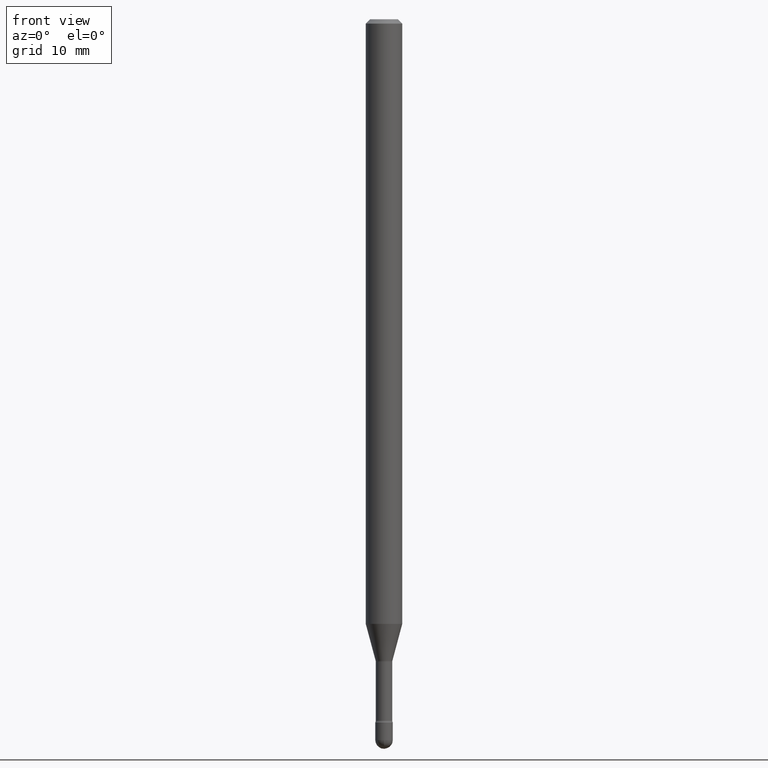
[diagram: clean part render]
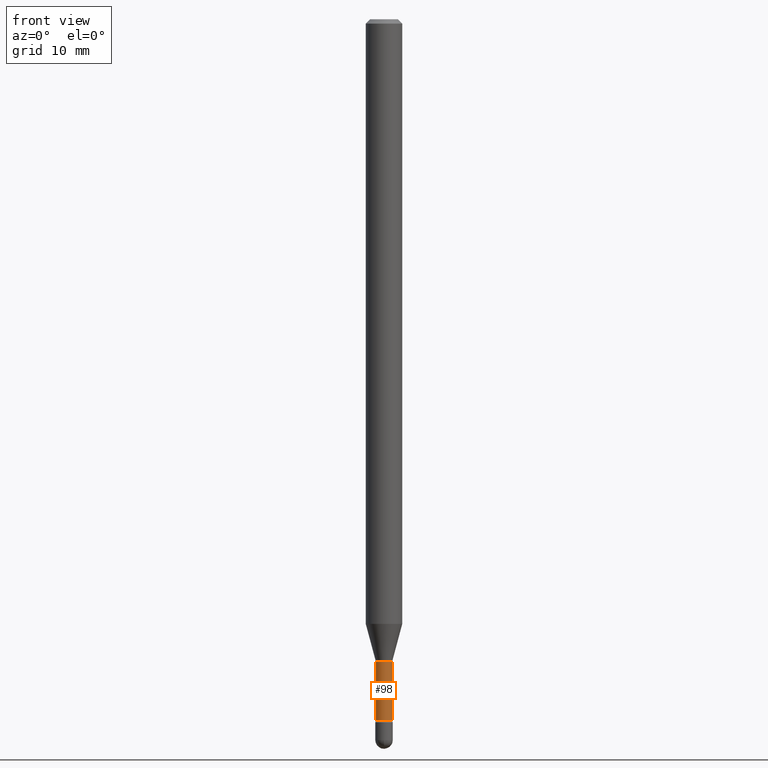
[diagram: same view with one face highlighted and labeled with its STEP entity id]
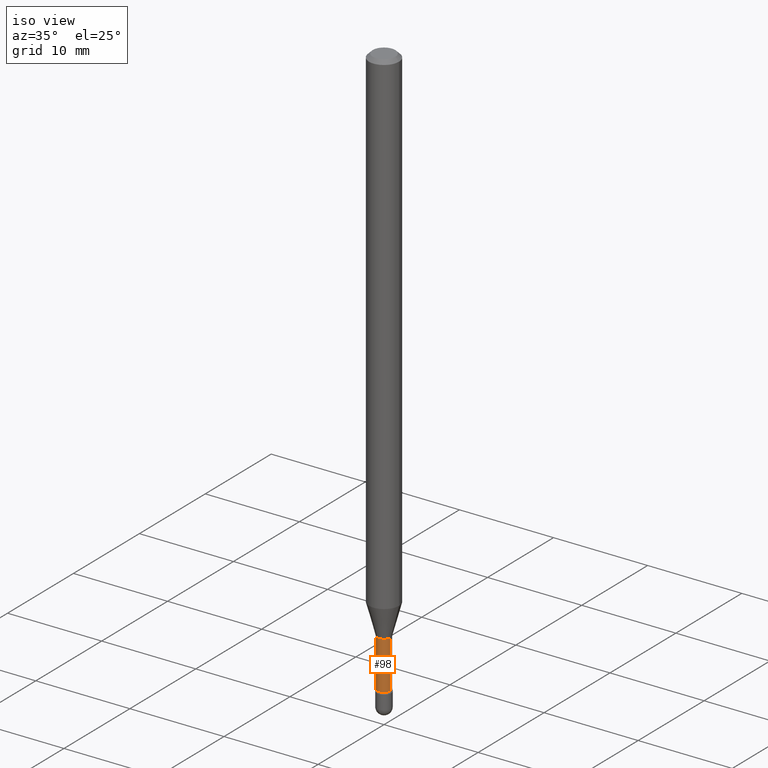
[diagram: same view with one face highlighted and labeled with its STEP entity id]
A machine part, front view. The second image highlights one B-rep face of the part: STEP entity #98.
A second angle (iso view) of the same face is appended — the face is thin or edge-on in the first view.
In plain terms, the highlighted cylindrical surface (edge-blend (fillet) strip) has radius 0.7163 mm, axis along (-0, 0, 1).
Its self-contained STEP definition (entity closure, byte-faithful):
#22 = DIRECTION ( 'NONE',  ( -2.445468806185136597E-29, 3.491481338843145583E-15, 1.000000000000000000 ) ) ;
#39 = CARTESIAN_POINT ( 'NONE',  ( 0.02819999999999999590, -8.586514147837976028E-15, -2.402875394747777893 ) ) ;
#41 = DIRECTION ( 'NONE',  ( 1.000000000000000000, -6.982962677686278543E-15, 0.000000000000000000 ) ) ;
#43 = CARTESIAN_POINT ( 'NONE',  ( -0.02819999999999999590, -7.838501188195762748E-15, -2.201974787463810923 ) ) ;
#51 = EDGE_LOOP ( 'NONE', ( #447, #162, #253, #274 ) ) ;
#98 = ADVANCED_FACE ( 'NONE', ( #380 ), #244, .T. ) ;
#124 = EDGE_CURVE ( 'NONE', #137, #548, #457, .T. ) ;
#127 = CIRCLE ( 'NONE', #365, 0.02819999999999999590 ) ;
#137 = VERTEX_POINT ( 'NONE', #557 ) ;
#162 = ORIENTED_EDGE ( 'NONE', *, *, #167, .T. ) ;
#167 = EDGE_CURVE ( 'NONE', #137, #532, #317, .T. ) ;
#172 = CARTESIAN_POINT ( 'NONE',  ( 5.876156823005487003E-29, -8.389594600327222537E-15, -2.402875394747777893 ) ) ;
#203 = CARTESIAN_POINT ( 'NONE',  ( -1.169113584055446105E-44, 1.669184350826100908E-30, 4.780733988912460139E-16 ) ) ;
#215 = DIRECTION ( 'NONE',  ( 1.000000000000000000, -6.982962677686266711E-15, 4.947382444955205209E-29 ) ) ;
#220 = CARTESIAN_POINT ( 'NONE',  ( 5.384860654748895550E-29, -7.688153879032997927E-15, -2.201974787463810923 ) ) ;
#244 = CYLINDRICAL_SURFACE ( 'NONE', #529, 0.02819999999999999590 ) ;
#245 = VERTEX_POINT ( 'NONE', #428 ) ;
#253 = ORIENTED_EDGE ( 'NONE', *, *, #300, .T. ) ;
#263 = DIRECTION ( 'NONE',  ( -2.445468806185136597E-29, 3.491481338843145583E-15, 1.000000000000000000 ) ) ;
#272 = VECTOR ( 'NONE', #273, 39.37007874015748143 ) ;
#273 = DIRECTION ( 'NONE',  ( -2.445468806185136877E-29, 3.491481338843145188E-15, 1.000000000000000000 ) ) ;
#274 = ORIENTED_EDGE ( 'NONE', *, *, #533, .F. ) ;
#294 = AXIS2_PLACEMENT_3D ( 'NONE', #172, #263, #299 ) ;
#299 = DIRECTION ( 'NONE',  ( 1.000000000000000000, -6.982962677686278543E-15, 0.000000000000000000 ) ) ;
#300 = EDGE_CURVE ( 'NONE', #532, #245, #356, .T. ) ;
#302 = DIRECTION ( 'NONE',  ( -2.445468806185136597E-29, 3.491481338843145583E-15, 1.000000000000000000 ) ) ;
#317 = CIRCLE ( 'NONE', #294, 0.02819999999999999590 ) ;
#356 = LINE ( 'NONE', #409, #272 ) ;
#365 = AXIS2_PLACEMENT_3D ( 'NONE', #220, #302, #41 ) ;
#380 = FACE_OUTER_BOUND ( 'NONE', #51, .T. ) ;
#384 = DIRECTION ( 'NONE',  ( -2.445468806185136877E-29, 3.491481338843145188E-15, 1.000000000000000000 ) ) ;
#409 = CARTESIAN_POINT ( 'NONE',  ( 0.02819999999999999590, -1.969195475107510260E-16, 4.780733988912474930E-16 ) ) ;
#428 = CARTESIAN_POINT ( 'NONE',  ( 0.02819999999999999590, -7.885073426543749840E-15, -2.201974787463810923 ) ) ;
#447 = ORIENTED_EDGE ( 'NONE', *, *, #124, .F. ) ;
#457 = LINE ( 'NONE', #506, #542 ) ;
#506 = CARTESIAN_POINT ( 'NONE',  ( -0.02819999999999999590, 2.003730514843498996E-16, 4.780733988912446334E-16 ) ) ;
#529 = AXIS2_PLACEMENT_3D ( 'NONE', #203, #22, #215 ) ;
#532 = VERTEX_POINT ( 'NONE', #39 ) ;
#533 = EDGE_CURVE ( 'NONE', #548, #245, #127, .T. ) ;
#542 = VECTOR ( 'NONE', #384, 39.37007874015748143 ) ;
#548 = VERTEX_POINT ( 'NONE', #43 ) ;
#557 = CARTESIAN_POINT ( 'NONE',  ( -0.02819999999999999590, -8.195264377363413638E-15, -2.402875394747777893 ) ) ;